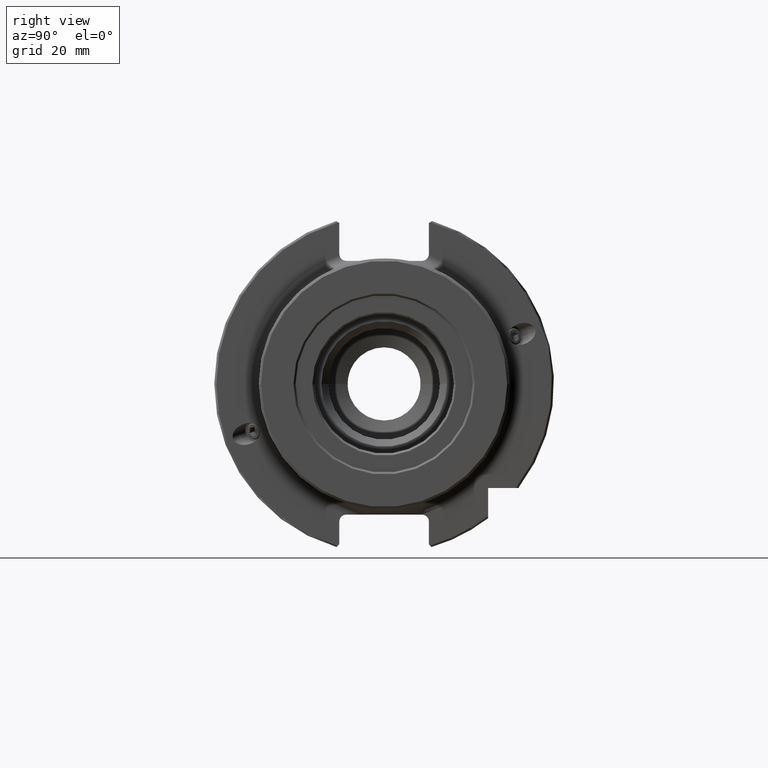
[diagram: clean part render]
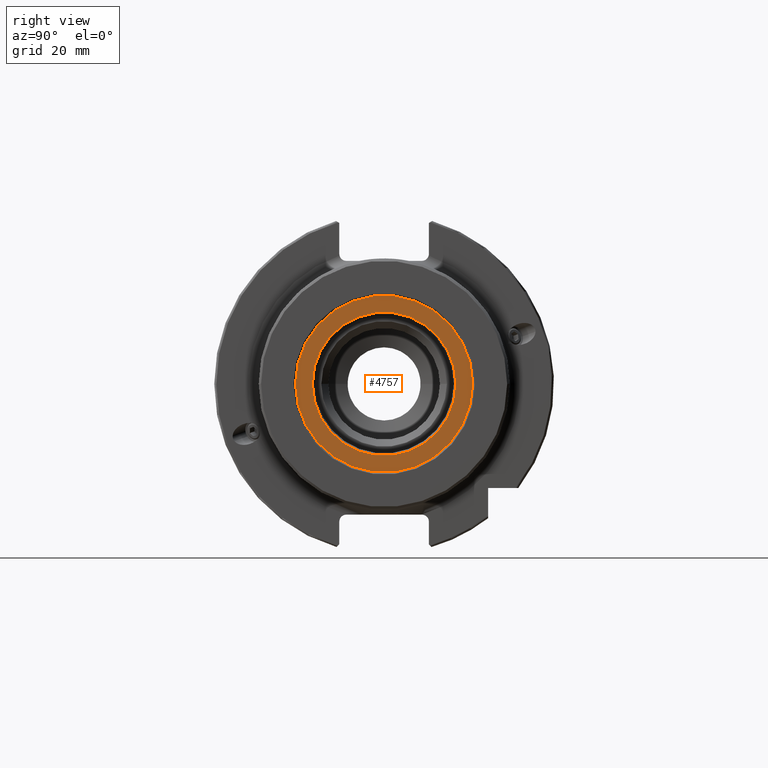
[diagram: same view with one face highlighted and labeled with its STEP entity id]
A machine part, right view. The second image highlights one B-rep face of the part: STEP entity #4757.
In plain terms, the highlighted planar face has unit normal (1, 0, 0).
Its self-contained STEP definition (entity closure, byte-faithful):
#83 = CARTESIAN_POINT ( 'NONE',  ( 58.40000000000001300, 25.39999999999999500, 0.0000000000000000000 ) ) ;
#523 = DIRECTION ( 'NONE',  ( 1.000000000000000000, 1.541467589183333400E-016, -0.0000000000000000000 ) ) ;
#553 = EDGE_LOOP ( 'NONE', ( #2035, #2107 ) ) ;
#655 = FACE_OUTER_BOUND ( 'NONE', #553, .T. ) ;
#1142 = CARTESIAN_POINT ( 'NONE',  ( 58.40000000000002700, -25.39999999999997400, 3.147342273808696500E-015 ) ) ;
#1272 = EDGE_CURVE ( 'NONE', #4416, #2441, #3968, .T. ) ;
#1296 = CARTESIAN_POINT ( 'NONE',  ( 58.40000000000001300, 25.39999999999999500, 0.0000000000000000000 ) ) ;
#1475 = EDGE_LOOP ( 'NONE', ( #2116, #2241 ) ) ;
#1489 = DIRECTION ( 'NONE',  ( -1.541467589183333400E-016, 1.000000000000000000, 0.0000000000000000000 ) ) ;
#1541 = DIRECTION ( 'NONE',  ( 1.000000000000000000, 1.541467589183333400E-016, -0.0000000000000000000 ) ) ;
#1543 = AXIS2_PLACEMENT_3D ( 'NONE', #3256, #523, #3751 ) ;
#1605 = AXIS2_PLACEMENT_3D ( 'NONE', #5406, #5417, #5482 ) ;
#2035 = ORIENTED_EDGE ( 'NONE', *, *, #5139, .T. ) ;
#2107 = ORIENTED_EDGE ( 'NONE', *, *, #1272, .T. ) ;
#2116 = ORIENTED_EDGE ( 'NONE', *, *, #3670, .F. ) ;
#2166 = FACE_BOUND ( 'NONE', #1475, .T. ) ;
#2241 = ORIENTED_EDGE ( 'NONE', *, *, #5250, .F. ) ;
#2441 = VERTEX_POINT ( 'NONE', #1296 ) ;
#2557 = VERTEX_POINT ( 'NONE', #3925 ) ;
#2835 = PLANE ( 'NONE',  #3296 ) ;
#3256 = CARTESIAN_POINT ( 'NONE',  ( 58.40000000000002000, 1.031585280050984500E-014, 0.0000000000000000000 ) ) ;
#3296 = AXIS2_PLACEMENT_3D ( 'NONE', #83, #4274, #1489 ) ;
#3670 = EDGE_CURVE ( 'NONE', #4225, #2557, #4441, .T. ) ;
#3751 = DIRECTION ( 'NONE',  ( -2.731847993664264700E-016, 1.000000000000000000, 0.0000000000000000000 ) ) ;
#3925 = CARTESIAN_POINT ( 'NONE',  ( 58.40000000000001300, -20.57735026918961200, 2.519998614209700000E-015 ) ) ;
#3968 = CIRCLE ( 'NONE', #1605, 25.39999999999998400 ) ;
#4034 = CIRCLE ( 'NONE', #4681, 20.57735026918962300 ) ;
#4101 = AXIS2_PLACEMENT_3D ( 'NONE', #4576, #4532, #4516 ) ;
#4225 = VERTEX_POINT ( 'NONE', #5210 ) ;
#4274 = DIRECTION ( 'NONE',  ( 1.000000000000000000, 1.541467589183333400E-016, -0.0000000000000000000 ) ) ;
#4329 = CARTESIAN_POINT ( 'NONE',  ( 58.40000000000001300, 1.031585280050984500E-014, 0.0000000000000000000 ) ) ;
#4416 = VERTEX_POINT ( 'NONE', #1142 ) ;
#4441 = CIRCLE ( 'NONE', #4101, 20.57735026918962300 ) ;
#4516 = DIRECTION ( 'NONE',  ( 0.0000000000000000000, 1.000000000000000000, 0.0000000000000000000 ) ) ;
#4532 = DIRECTION ( 'NONE',  ( 1.000000000000000000, 1.541467589183333400E-016, -0.0000000000000000000 ) ) ;
#4576 = CARTESIAN_POINT ( 'NONE',  ( 58.40000000000001300, 1.031585280050984500E-014, 0.0000000000000000000 ) ) ;
#4681 = AXIS2_PLACEMENT_3D ( 'NONE', #4329, #1541, #4822 ) ;
#4757 = ADVANCED_FACE ( 'NONE', ( #655, #2166 ), #2835, .T. ) ;
#4822 = DIRECTION ( 'NONE',  ( 0.0000000000000000000, 1.000000000000000000, 0.0000000000000000000 ) ) ;
#5090 = CIRCLE ( 'NONE', #1543, 25.39999999999998400 ) ;
#5139 = EDGE_CURVE ( 'NONE', #2441, #4416, #5090, .T. ) ;
#5210 = CARTESIAN_POINT ( 'NONE',  ( 58.40000000000001300, 20.57735026918963300, 0.0000000000000000000 ) ) ;
#5250 = EDGE_CURVE ( 'NONE', #2557, #4225, #4034, .T. ) ;
#5406 = CARTESIAN_POINT ( 'NONE',  ( 58.40000000000002000, 1.031585280050984500E-014, 0.0000000000000000000 ) ) ;
#5417 = DIRECTION ( 'NONE',  ( 1.000000000000000000, 1.541467589183333400E-016, -0.0000000000000000000 ) ) ;
#5482 = DIRECTION ( 'NONE',  ( -2.731847993664264700E-016, 1.000000000000000000, 0.0000000000000000000 ) ) ;